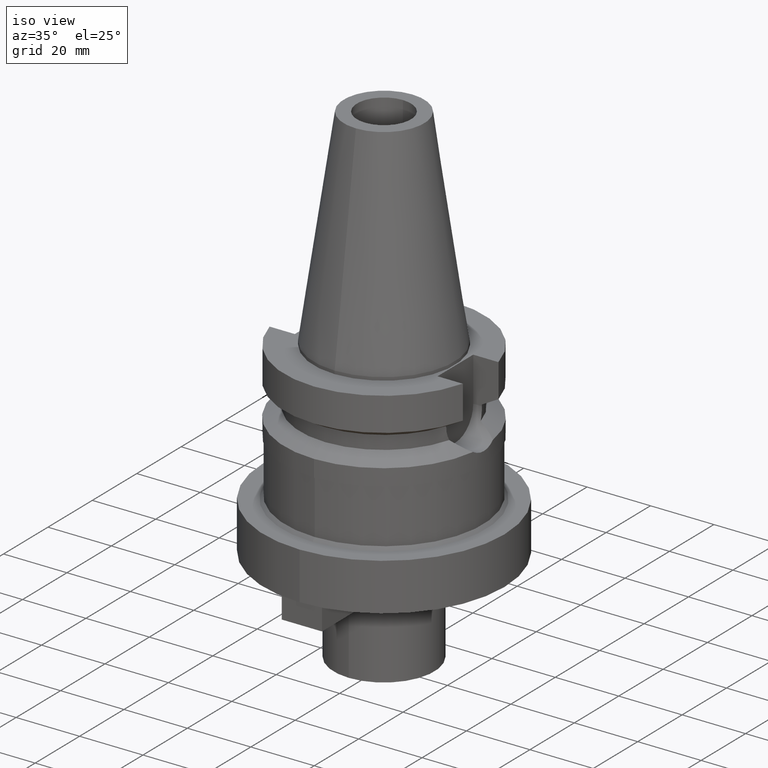
[diagram: clean part render]
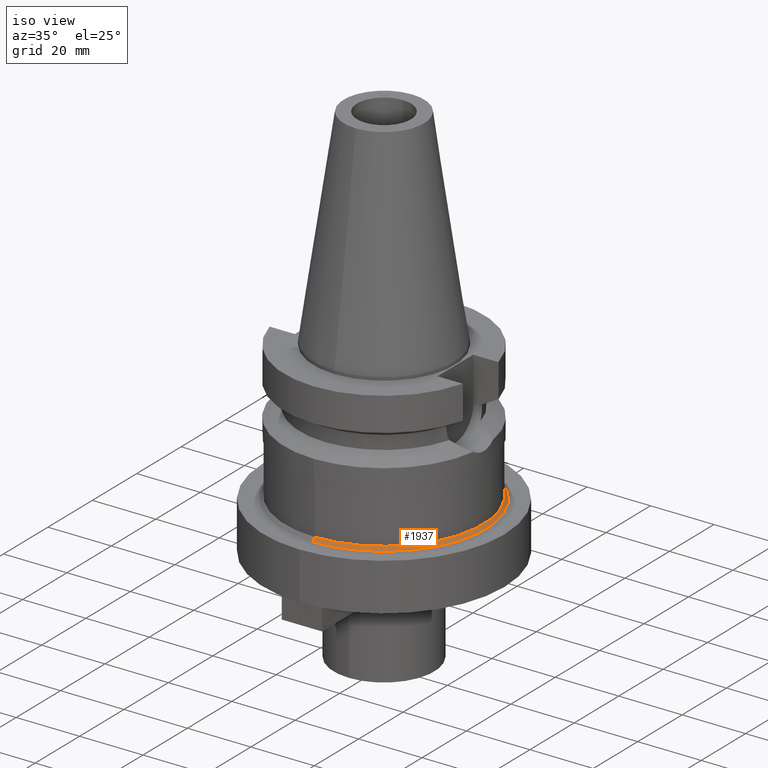
[diagram: same view with one face highlighted and labeled with its STEP entity id]
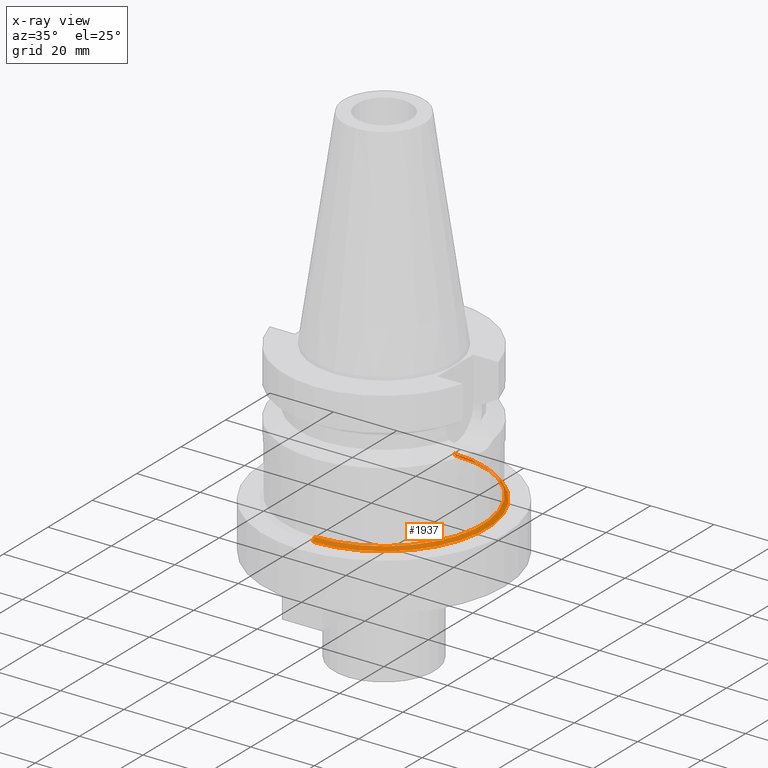
[diagram: x-ray of the same camera — body ghosted, the highlighted face saturated]
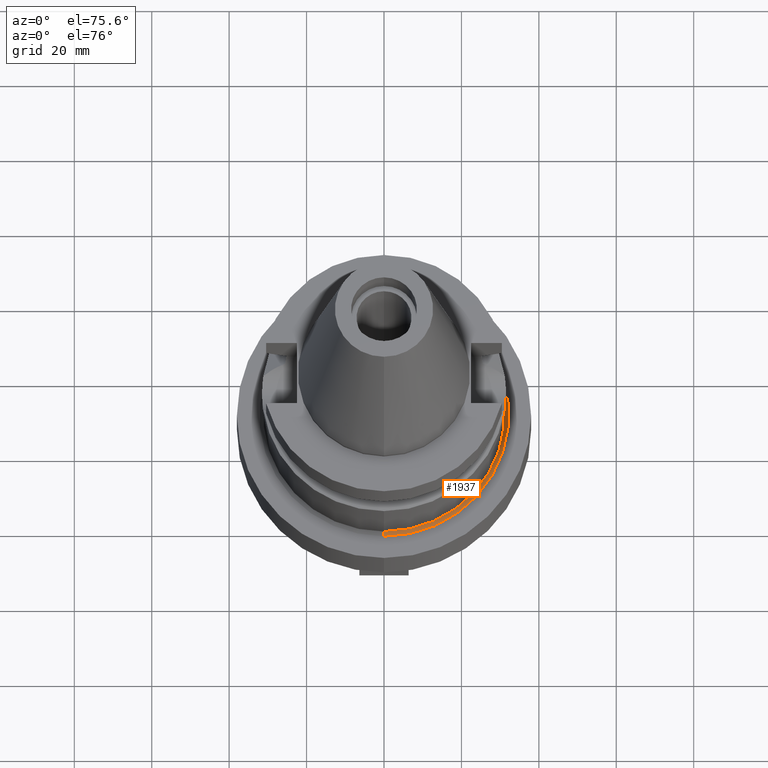
[diagram: same view with one face highlighted and labeled with its STEP entity id]
A machine part, iso view. The second image highlights one B-rep face of the part: STEP entity #1937.
The next image is the same camera in x-ray: the body ghosted, the highlighted face saturated — about 4% of this face is hidden behind the body in this view.
A second angle (auxiliary view) of the same face is appended — the face is thin or edge-on in the first view.
In plain terms, the highlighted conical surface has half-angle 45 deg.
Its self-contained STEP definition (entity closure, byte-faithful):
#675=DIRECTION('',(0.E0,7.071067811866E-1,-7.071067811865E-1));
#676=VECTOR('',#675,1.414213562373E0);
#677=CARTESIAN_POINT('',(0.E0,3.12E1,-4.4E1));
#678=LINE('',#677,#676);
#682=CARTESIAN_POINT('',(0.E0,0.E0,-4.4E1));
#683=DIRECTION('',(0.E0,0.E0,1.E0));
#684=DIRECTION('',(0.E0,-1.E0,0.E0));
#685=AXIS2_PLACEMENT_3D('',#682,#683,#684);
#698=DIRECTION('',(0.E0,-7.071067811866E-1,-7.071067811865E-1));
#699=VECTOR('',#698,1.414213562373E0);
#700=CARTESIAN_POINT('',(0.E0,-3.12E1,-4.4E1));
#701=LINE('',#700,#699);
#721=CARTESIAN_POINT('',(0.E0,0.E0,-4.5E1));
#722=DIRECTION('',(0.E0,0.E0,1.E0));
#723=DIRECTION('',(0.E0,-1.E0,0.E0));
#724=AXIS2_PLACEMENT_3D('',#721,#722,#723);
#1339=CARTESIAN_POINT('',(0.E0,-3.22E1,-4.5E1));
#1340=CARTESIAN_POINT('',(0.E0,3.22E1,-4.5E1));
#1341=VERTEX_POINT('',#1339);
#1342=VERTEX_POINT('',#1340);
#1343=CARTESIAN_POINT('',(0.E0,3.12E1,-4.4E1));
#1344=VERTEX_POINT('',#1343);
#1345=CARTESIAN_POINT('',(0.E0,-3.12E1,-4.4E1));
#1346=VERTEX_POINT('',#1345);
#1923=CARTESIAN_POINT('',(0.E0,0.E0,-4.45E1));
#1924=DIRECTION('',(0.E0,0.E0,-1.E0));
#1925=DIRECTION('',(0.E0,-1.E0,0.E0));
#1926=AXIS2_PLACEMENT_3D('',#1923,#1924,#1925);
#1927=CONICAL_SURFACE('',#1926,3.17E1,4.5E1);
#1929=ORIENTED_EDGE('',*,*,#1928,.T.);
#1931=ORIENTED_EDGE('',*,*,#1930,.F.);
#1933=ORIENTED_EDGE('',*,*,#1932,.F.);
#1934=ORIENTED_EDGE('',*,*,#1916,.T.);
#1935=EDGE_LOOP('',(#1929,#1931,#1933,#1934));
#1936=FACE_OUTER_BOUND('',#1935,.F.);
#686=CIRCLE('',#685,3.12E1);
#725=CIRCLE('',#724,3.22E1);
#1916=EDGE_CURVE('',#1346,#1344,#686,.T.);
#1928=EDGE_CURVE('',#1344,#1342,#678,.T.);
#1930=EDGE_CURVE('',#1341,#1342,#725,.T.);
#1932=EDGE_CURVE('',#1346,#1341,#701,.T.);
#1937=ADVANCED_FACE('',(#1936),#1927,.T.);